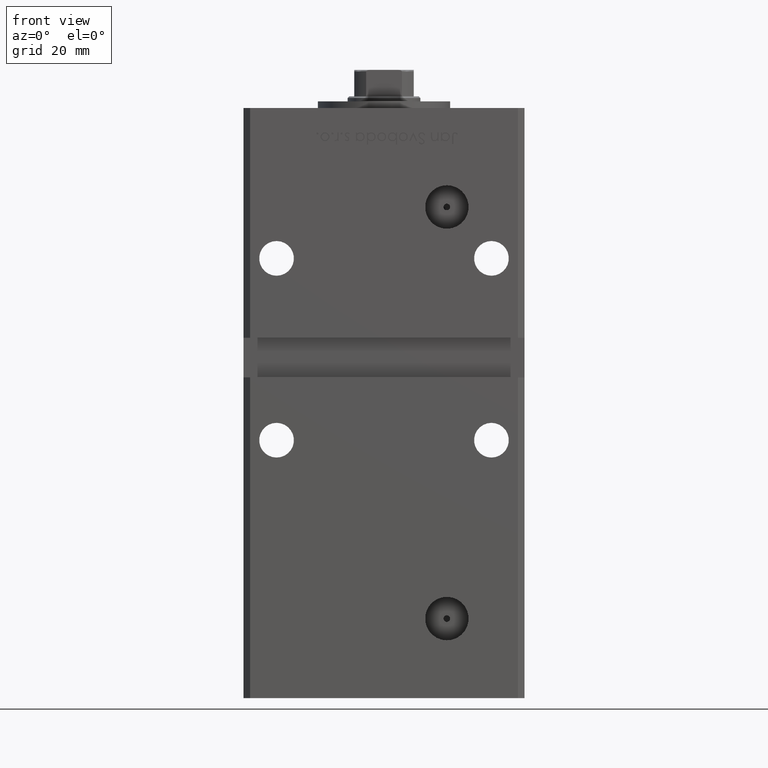
[diagram: clean part render]
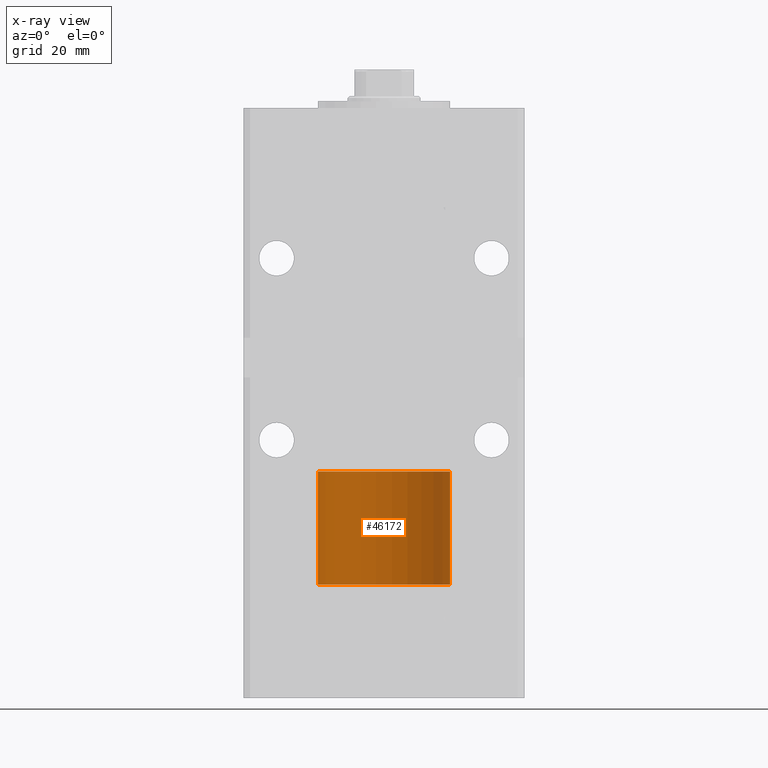
[diagram: x-ray — body ghosted, one internal face saturated and labeled with its STEP entity id]
A machine part, front view, then the same camera in x-ray: the body is ghosted and one INTERNAL B-rep face — a face not visible from any outside direction — is saturated and labeled: STEP entity #46172.
In plain terms, the highlighted cylindrical surface (partial cylindrical patch) has radius 20 mm, axis along (-0, -0, -1).
Its self-contained STEP definition (entity closure, byte-faithful):
#4763 = CARTESIAN_POINT ( 'NONE',  ( 20.00000000000000000, 2.449293598294706513E-15, 0.000000000000000000 ) ) ;
#4800 = DIRECTION ( 'NONE',  ( 1.000000000000000000, 0.000000000000000000, 0.000000000000000000 ) ) ;
#5724 = CARTESIAN_POINT ( 'NONE',  ( 0.000000000000000000, 0.000000000000000000, 34.25000000000000000 ) ) ;
#7237 = LINE ( 'NONE', #23654, #30073 ) ;
#8361 = DIRECTION ( 'NONE',  ( 0.000000000000000000, 0.000000000000000000, 1.000000000000000000 ) ) ;
#8841 = CARTESIAN_POINT ( 'NONE',  ( 0.000000000000000000, 0.000000000000000000, 0.000000000000000000 ) ) ;
#10932 = CARTESIAN_POINT ( 'NONE',  ( -20.00000000000000000, 0.000000000000000000, 34.25000000000000000 ) ) ;
#12036 = AXIS2_PLACEMENT_3D ( 'NONE', #5724, #22145, #38548 ) ;
#12675 = VERTEX_POINT ( 'NONE', #4763 ) ;
#14096 = AXIS2_PLACEMENT_3D ( 'NONE', #36626, #8361, #20744 ) ;
#16115 = DIRECTION ( 'NONE',  ( 0.000000000000000000, 0.000000000000000000, 1.000000000000000000 ) ) ;
#16159 = VERTEX_POINT ( 'NONE', #10932 ) ;
#16835 = EDGE_CURVE ( 'NONE', #30950, #16159, #37317, .T. ) ;
#19361 = EDGE_CURVE ( 'NONE', #16159, #43435, #33788, .T. ) ;
#20744 = DIRECTION ( 'NONE',  ( 1.000000000000000000, 0.000000000000000000, 0.000000000000000000 ) ) ;
#22145 = DIRECTION ( 'NONE',  ( -0.000000000000000000, -0.000000000000000000, -1.000000000000000000 ) ) ;
#22208 = CARTESIAN_POINT ( 'NONE',  ( -20.00000000000000000, 0.000000000000000000, 34.25000000000000000 ) ) ;
#23654 = CARTESIAN_POINT ( 'NONE',  ( 20.00000000000000000, 2.449293598294706513E-15, 34.25000000000000000 ) ) ;
#25248 = EDGE_LOOP ( 'NONE', ( #27830, #43623, #47381, #42446 ) ) ;
#26755 = CARTESIAN_POINT ( 'NONE',  ( 20.00000000000000000, 2.449293598294706513E-15, 34.25000000000000000 ) ) ;
#27830 = ORIENTED_EDGE ( 'NONE', *, *, #16835, .F. ) ;
#29880 = CARTESIAN_POINT ( 'NONE',  ( -20.00000000000000000, 0.000000000000000000, 0.000000000000000000 ) ) ;
#30073 = VECTOR ( 'NONE', #40064, 1000.000000000000000 ) ;
#30727 = CYLINDRICAL_SURFACE ( 'NONE', #12036, 20.00000000000000000 ) ;
#30950 = VERTEX_POINT ( 'NONE', #26755 ) ;
#33031 = EDGE_CURVE ( 'NONE', #12675, #43435, #34114, .T. ) ;
#33788 = LINE ( 'NONE', #22208, #48503 ) ;
#34114 = CIRCLE ( 'NONE', #46144, 20.00000000000000000 ) ;
#36626 = CARTESIAN_POINT ( 'NONE',  ( 0.000000000000000000, 0.000000000000000000, 34.25000000000000000 ) ) ;
#37317 = CIRCLE ( 'NONE', #14096, 20.00000000000000000 ) ;
#38548 = DIRECTION ( 'NONE',  ( -1.000000000000000000, 0.000000000000000000, 0.000000000000000000 ) ) ;
#40064 = DIRECTION ( 'NONE',  ( -0.000000000000000000, -0.000000000000000000, -1.000000000000000000 ) ) ;
#42301 = EDGE_CURVE ( 'NONE', #30950, #12675, #7237, .T. ) ;
#42446 = ORIENTED_EDGE ( 'NONE', *, *, #19361, .F. ) ;
#42582 = FACE_OUTER_BOUND ( 'NONE', #25248, .T. ) ;
#43435 = VERTEX_POINT ( 'NONE', #29880 ) ;
#43623 = ORIENTED_EDGE ( 'NONE', *, *, #42301, .T. ) ;
#46144 = AXIS2_PLACEMENT_3D ( 'NONE', #8841, #16115, #4800 ) ;
#46172 = ADVANCED_FACE ( 'NONE', ( #42582 ), #30727, .T. ) ;
#47381 = ORIENTED_EDGE ( 'NONE', *, *, #33031, .T. ) ;
#48503 = VECTOR ( 'NONE', #50456, 1000.000000000000000 ) ;
#50456 = DIRECTION ( 'NONE',  ( -0.000000000000000000, -0.000000000000000000, -1.000000000000000000 ) ) ;